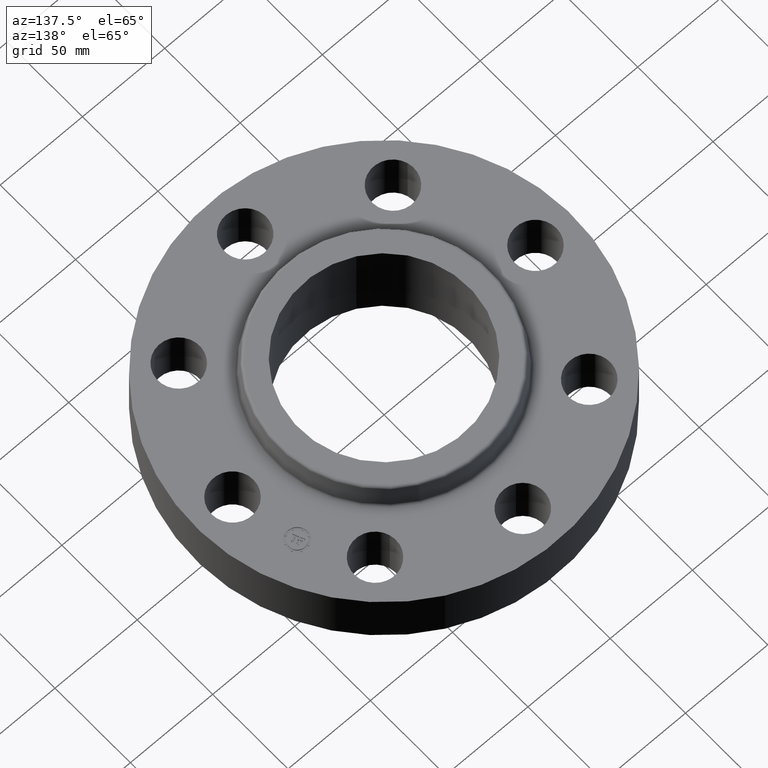
[diagram: clean part render]
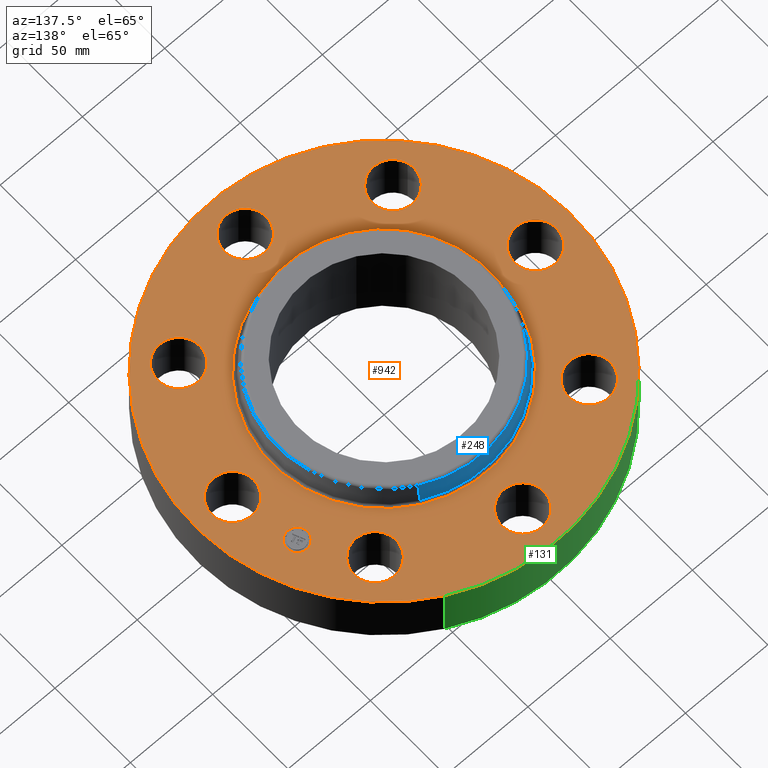
[diagram: same view with three faces highlighted in distinct colors, each labeled with its STEP entity id]
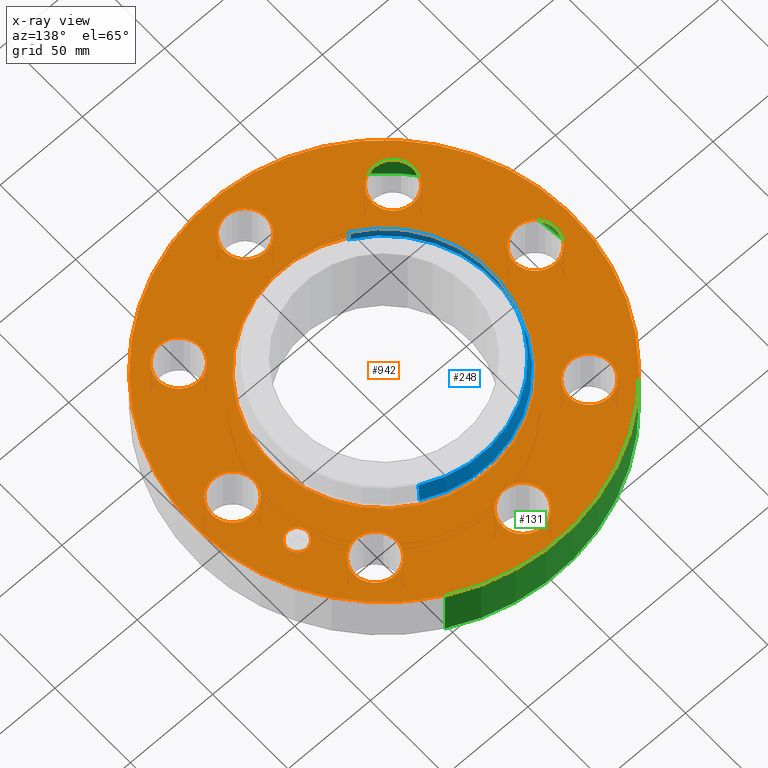
[diagram: x-ray of the same camera — body ghosted, the three highlighted faces saturated]
A machine part, auxiliary view with three faces highlighted in distinct colors.
The next image is the same camera in x-ray (body ghosted, the three faces saturated) — at least one of them is partly hidden behind the body in this view.
Their STEP definitions:

[orange] entity #942 — the highlighted planar face has unit normal (0, 0, -1).
#65=AXIS2_PLACEMENT_3D('Circle Axis2P3D',#63,#64,$) ;
#82=AXIS2_PLACEMENT_3D('Circle Axis2P3D',#80,#81,$) ;
#115=AXIS2_PLACEMENT_3D('Circle Axis2P3D',#113,#114,$) ;
#139=AXIS2_PLACEMENT_3D('Circle Axis2P3D',#137,#138,$) ;
#156=AXIS2_PLACEMENT_3D('Circle Axis2P3D',#154,#155,$) ;
#191=AXIS2_PLACEMENT_3D('Circle Axis2P3D',#189,#190,$) ;
#599=AXIS2_PLACEMENT_3D('Circle Axis2P3D',#597,#598,$) ;
#611=AXIS2_PLACEMENT_3D('Circle Axis2P3D',#609,#610,$) ;
#642=AXIS2_PLACEMENT_3D('Circle Axis2P3D',#640,#641,$) ;
#654=AXIS2_PLACEMENT_3D('Circle Axis2P3D',#652,#653,$) ;
#685=AXIS2_PLACEMENT_3D('Circle Axis2P3D',#683,#684,$) ;
#697=AXIS2_PLACEMENT_3D('Circle Axis2P3D',#695,#696,$) ;
#728=AXIS2_PLACEMENT_3D('Circle Axis2P3D',#726,#727,$) ;
#740=AXIS2_PLACEMENT_3D('Circle Axis2P3D',#738,#739,$) ;
#771=AXIS2_PLACEMENT_3D('Circle Axis2P3D',#769,#770,$) ;
#783=AXIS2_PLACEMENT_3D('Circle Axis2P3D',#781,#782,$) ;
#814=AXIS2_PLACEMENT_3D('Circle Axis2P3D',#812,#813,$) ;
#826=AXIS2_PLACEMENT_3D('Circle Axis2P3D',#824,#825,$) ;
#857=AXIS2_PLACEMENT_3D('Circle Axis2P3D',#855,#856,$) ;
#869=AXIS2_PLACEMENT_3D('Circle Axis2P3D',#867,#868,$) ;
#882=AXIS2_PLACEMENT_3D('Plane Axis2P3D',#879,#880,#881) ;
#926=AXIS2_PLACEMENT_3D('Circle Axis2P3D',#924,#925,$) ;
#935=AXIS2_PLACEMENT_3D('Circle Axis2P3D',#933,#934,$) ;
#46=CARTESIAN_POINT('Vertex',(3.18620871907,0.239712769303,1.38000000001)) ;
#60=CARTESIAN_POINT('Vertex',(4.06379128096,-0.239712769303,1.38000000001)) ;
#63=CARTESIAN_POINT('Axis2P3D Location',(3.62500000001,0.,1.38000000001)) ;
#80=CARTESIAN_POINT('Axis2P3D Location',(3.62500000001,0.,1.38000000001)) ;
#110=CARTESIAN_POINT('Vertex',(-2.15741492373,-3.94912152852,1.38000000001)) ;
#113=CARTESIAN_POINT('Axis2P3D Location',(0.,0.,1.38000000001)) ;
#117=CARTESIAN_POINT('Vertex',(2.15741492373,3.94912152852,1.38000000001)) ;
#137=CARTESIAN_POINT('Axis2P3D Location',(0.,0.,1.38000000001)) ;
#154=CARTESIAN_POINT('Axis2P3D Location',(0.,0.,1.38000000001)) ;
#158=CARTESIAN_POINT('Vertex',(1.2826291864,2.34783697721,1.38000000001)) ;
#160=CARTESIAN_POINT('Vertex',(-1.2826291864,-2.34783697721,1.38000000001)) ;
#189=CARTESIAN_POINT('Axis2P3D Location',(0.,0.,1.38000000001)) ;
#587=CARTESIAN_POINT('Vertex',(-2.42249231624,2.08348726682,1.38000000001)) ;
#594=CARTESIAN_POINT('Vertex',(-2.70403184738,3.04303689681,1.38000000001)) ;
#597=CARTESIAN_POINT('Axis2P3D Location',(-2.56326208181,2.56326208181,1.38000000001)) ;
#609=CARTESIAN_POINT('Axis2P3D Location',(-2.56326208181,2.56326208181,1.38000000001)) ;
#630=CARTESIAN_POINT('Vertex',(0.239712769303,-3.18620871907,1.38000000001)) ;
#637=CARTESIAN_POINT('Vertex',(-0.239712769303,-4.06379128096,1.38000000001)) ;
#640=CARTESIAN_POINT('Axis2P3D Location',(-3.37515236756E-016,-3.62500000001,1.38000000001)) ;
#652=CARTESIAN_POINT('Axis2P3D Location',(-3.37515236756E-016,-3.62500000001,1.38000000001)) ;
#673=CARTESIAN_POINT('Vertex',(-0.239712769303,3.18620871907,1.38000000001)) ;
#680=CARTESIAN_POINT('Vertex',(0.239712769303,4.06379128096,1.38000000001)) ;
#683=CARTESIAN_POINT('Axis2P3D Location',(-6.65901697039E-016,3.62500000001,1.38000000001)) ;
#695=CARTESIAN_POINT('Axis2P3D Location',(-6.65901697039E-016,3.62500000001,1.38000000001)) ;
#716=CARTESIAN_POINT('Vertex',(-2.08348726682,-2.42249231624,1.38000000001)) ;
#723=CARTESIAN_POINT('Vertex',(-3.04303689681,-2.70403184738,1.38000000001)) ;
#726=CARTESIAN_POINT('Axis2P3D Location',(-2.56326208181,-2.56326208181,1.38000000001)) ;
#738=CARTESIAN_POINT('Axis2P3D Location',(-2.56326208181,-2.56326208181,1.38000000001)) ;
#759=CARTESIAN_POINT('Vertex',(2.08348726682,2.42249231624,1.38000000001)) ;
#766=CARTESIAN_POINT('Vertex',(3.04303689681,2.70403184738,1.38000000001)) ;
#769=CARTESIAN_POINT('Axis2P3D Location',(2.56326208181,2.56326208181,1.38000000001)) ;
#781=CARTESIAN_POINT('Axis2P3D Location',(2.56326208181,2.56326208181,1.38000000001)) ;
#802=CARTESIAN_POINT('Vertex',(-3.18620871907,-0.239712769303,1.38000000001)) ;
#809=CARTESIAN_POINT('Vertex',(-4.06379128096,0.239712769303,1.38000000001)) ;
#812=CARTESIAN_POINT('Axis2P3D Location',(-3.62500000001,-4.43934464693E-016,1.38000000001)) ;
#824=CARTESIAN_POINT('Axis2P3D Location',(-3.62500000001,-4.43934464693E-016,1.38000000001)) ;
#845=CARTESIAN_POINT('Vertex',(2.42249231624,-2.08348726682,1.38000000001)) ;
#852=CARTESIAN_POINT('Vertex',(2.70403184738,-3.04303689681,1.38000000001)) ;
#855=CARTESIAN_POINT('Axis2P3D Location',(2.56326208181,-2.56326208181,1.38000000001)) ;
#867=CARTESIAN_POINT('Axis2P3D Location',(2.56326208181,-2.56326208181,1.38000000001)) ;
#879=CARTESIAN_POINT('Axis2P3D Location',(0.,4.50000000002,1.38000000001)) ;
#924=CARTESIAN_POINT('Axis2P3D Location',(3.34906330537,1.38722744233,1.38000000001)) ;
#928=CARTESIAN_POINT('Vertex',(3.25434915586,1.61588762663,1.38000000001)) ;
#930=CARTESIAN_POINT('Vertex',(3.44377745488,1.15856725803,1.38000000001)) ;
#933=CARTESIAN_POINT('Axis2P3D Location',(3.34906330537,1.38722744233,1.38000000001)) ;
#64=DIRECTION('Axis2P3D Direction',(0.,-0.,-0.0393700787402)) ;
#81=DIRECTION('Axis2P3D Direction',(0.,-0.,-0.0393700787402)) ;
#114=DIRECTION('Axis2P3D Direction',(0.,0.,-0.0393700787402)) ;
#138=DIRECTION('Axis2P3D Direction',(0.,0.,-0.0393700787402)) ;
#155=DIRECTION('Axis2P3D Direction',(0.,0.,-0.0393700787402)) ;
#190=DIRECTION('Axis2P3D Direction',(0.,0.,-0.0393700787402)) ;
#598=DIRECTION('Axis2P3D Direction',(0.,0.,-0.0393700787402)) ;
#610=DIRECTION('Axis2P3D Direction',(0.,0.,-0.0393700787402)) ;
#641=DIRECTION('Axis2P3D Direction',(0.,-0.,-0.0393700787402)) ;
#653=DIRECTION('Axis2P3D Direction',(0.,-0.,-0.0393700787402)) ;
#684=DIRECTION('Axis2P3D Direction',(0.,0.,-0.0393700787402)) ;
#696=DIRECTION('Axis2P3D Direction',(0.,0.,-0.0393700787402)) ;
#727=DIRECTION('Axis2P3D Direction',(-0.,0.,-0.0393700787402)) ;
#739=DIRECTION('Axis2P3D Direction',(-0.,0.,-0.0393700787402)) ;
#770=DIRECTION('Axis2P3D Direction',(0.,0.,-0.0393700787402)) ;
#782=DIRECTION('Axis2P3D Direction',(0.,0.,-0.0393700787402)) ;
#813=DIRECTION('Axis2P3D Direction',(-0.,0.,-0.0393700787402)) ;
#825=DIRECTION('Axis2P3D Direction',(-0.,0.,-0.0393700787402)) ;
#856=DIRECTION('Axis2P3D Direction',(0.,-0.,-0.0393700787402)) ;
#868=DIRECTION('Axis2P3D Direction',(0.,-0.,-0.0393700787402)) ;
#880=DIRECTION('Axis2P3D Direction',(0.,0.,-0.0393700787402)) ;
#881=DIRECTION('Axis2P3D XDirection',(0.0393700787402,0.,0.)) ;
#925=DIRECTION('Axis2P3D Direction',(0.,0.,-0.0393700787402)) ;
#934=DIRECTION('Axis2P3D Direction',(0.,0.,-0.0393700787402)) ;
#885=ORIENTED_EDGE('',*,*,#141,.F.) ;
#886=ORIENTED_EDGE('',*,*,#119,.F.) ;
#889=ORIENTED_EDGE('',*,*,#67,.T.) ;
#890=ORIENTED_EDGE('',*,*,#84,.T.) ;
#893=ORIENTED_EDGE('',*,*,#193,.T.) ;
#894=ORIENTED_EDGE('',*,*,#162,.T.) ;
#897=ORIENTED_EDGE('',*,*,#871,.T.) ;
#898=ORIENTED_EDGE('',*,*,#859,.T.) ;
#901=ORIENTED_EDGE('',*,*,#656,.T.) ;
#902=ORIENTED_EDGE('',*,*,#644,.T.) ;
#905=ORIENTED_EDGE('',*,*,#742,.T.) ;
#906=ORIENTED_EDGE('',*,*,#730,.T.) ;
#909=ORIENTED_EDGE('',*,*,#828,.T.) ;
#910=ORIENTED_EDGE('',*,*,#816,.T.) ;
#913=ORIENTED_EDGE('',*,*,#613,.T.) ;
#914=ORIENTED_EDGE('',*,*,#601,.T.) ;
#917=ORIENTED_EDGE('',*,*,#699,.T.) ;
#918=ORIENTED_EDGE('',*,*,#687,.T.) ;
#921=ORIENTED_EDGE('',*,*,#785,.T.) ;
#922=ORIENTED_EDGE('',*,*,#773,.T.) ;
#939=ORIENTED_EDGE('',*,*,#932,.T.) ;
#940=ORIENTED_EDGE('',*,*,#937,.T.) ;
#891=FACE_BOUND('',#888,.T.) ;
#895=FACE_BOUND('',#892,.T.) ;
#899=FACE_BOUND('',#896,.T.) ;
#903=FACE_BOUND('',#900,.T.) ;
#907=FACE_BOUND('',#904,.T.) ;
#911=FACE_BOUND('',#908,.T.) ;
#915=FACE_BOUND('',#912,.T.) ;
#919=FACE_BOUND('',#916,.T.) ;
#923=FACE_BOUND('',#920,.T.) ;
#941=FACE_BOUND('',#938,.T.) ;
#942=ADVANCED_FACE('PartBody',(#887,#891,#895,#899,#903,#907,#911,#915,#919,#923,#941),#883,.F.) ;
#66=CIRCLE('generated circle',#65,0.500000000002) ;
#83=CIRCLE('generated circle',#82,0.500000000002) ;
#116=CIRCLE('generated circle',#115,4.50000000002) ;
#140=CIRCLE('generated circle',#139,4.50000000002) ;
#157=CIRCLE('generated circle',#156,2.67534597788) ;
#192=CIRCLE('generated circle',#191,2.67534597788) ;
#600=CIRCLE('generated circle',#599,0.500000000002) ;
#612=CIRCLE('generated circle',#611,0.500000000002) ;
#643=CIRCLE('generated circle',#642,0.500000000002) ;
#655=CIRCLE('generated circle',#654,0.500000000002) ;
#686=CIRCLE('generated circle',#685,0.500000000002) ;
#698=CIRCLE('generated circle',#697,0.500000000002) ;
#729=CIRCLE('generated circle',#728,0.500000000002) ;
#741=CIRCLE('generated circle',#740,0.500000000002) ;
#772=CIRCLE('generated circle',#771,0.500000000002) ;
#784=CIRCLE('generated circle',#783,0.500000000002) ;
#815=CIRCLE('generated circle',#814,0.500000000002) ;
#827=CIRCLE('generated circle',#826,0.500000000002) ;
#858=CIRCLE('generated circle',#857,0.500000000002) ;
#870=CIRCLE('generated circle',#869,0.500000000002) ;
#927=CIRCLE('generated circle',#926,0.247500000001) ;
#936=CIRCLE('generated circle',#935,0.247500000001) ;
#67=EDGE_CURVE('',#47,#61,#66,.T.) ;
#84=EDGE_CURVE('',#61,#47,#83,.T.) ;
#119=EDGE_CURVE('',#111,#118,#116,.T.) ;
#141=EDGE_CURVE('',#118,#111,#140,.T.) ;
#162=EDGE_CURVE('',#159,#161,#157,.T.) ;
#193=EDGE_CURVE('',#161,#159,#192,.T.) ;
#601=EDGE_CURVE('',#588,#595,#600,.T.) ;
#613=EDGE_CURVE('',#595,#588,#612,.T.) ;
#644=EDGE_CURVE('',#631,#638,#643,.T.) ;
#656=EDGE_CURVE('',#638,#631,#655,.T.) ;
#687=EDGE_CURVE('',#674,#681,#686,.T.) ;
#699=EDGE_CURVE('',#681,#674,#698,.T.) ;
#730=EDGE_CURVE('',#717,#724,#729,.T.) ;
#742=EDGE_CURVE('',#724,#717,#741,.T.) ;
#773=EDGE_CURVE('',#760,#767,#772,.T.) ;
#785=EDGE_CURVE('',#767,#760,#784,.T.) ;
#816=EDGE_CURVE('',#803,#810,#815,.T.) ;
#828=EDGE_CURVE('',#810,#803,#827,.T.) ;
#859=EDGE_CURVE('',#846,#853,#858,.T.) ;
#871=EDGE_CURVE('',#853,#846,#870,.T.) ;
#932=EDGE_CURVE('',#929,#931,#927,.T.) ;
#937=EDGE_CURVE('',#931,#929,#936,.T.) ;
#884=EDGE_LOOP('',(#885,#886)) ;
#888=EDGE_LOOP('',(#889,#890)) ;
#892=EDGE_LOOP('',(#893,#894)) ;
#896=EDGE_LOOP('',(#897,#898)) ;
#900=EDGE_LOOP('',(#901,#902)) ;
#904=EDGE_LOOP('',(#905,#906)) ;
#908=EDGE_LOOP('',(#909,#910)) ;
#912=EDGE_LOOP('',(#913,#914)) ;
#916=EDGE_LOOP('',(#917,#918)) ;
#920=EDGE_LOOP('',(#921,#922)) ;
#938=EDGE_LOOP('',(#939,#940)) ;
#887=FACE_OUTER_BOUND('',#884,.T.) ;
#883=PLANE('',#882) ;
#47=VERTEX_POINT('',#46) ;
#61=VERTEX_POINT('',#60) ;
#111=VERTEX_POINT('',#110) ;
#118=VERTEX_POINT('',#117) ;
#159=VERTEX_POINT('',#158) ;
#161=VERTEX_POINT('',#160) ;
#588=VERTEX_POINT('',#587) ;
#595=VERTEX_POINT('',#594) ;
#631=VERTEX_POINT('',#630) ;
#638=VERTEX_POINT('',#637) ;
#674=VERTEX_POINT('',#673) ;
#681=VERTEX_POINT('',#680) ;
#717=VERTEX_POINT('',#716) ;
#724=VERTEX_POINT('',#723) ;
#760=VERTEX_POINT('',#759) ;
#767=VERTEX_POINT('',#766) ;
#803=VERTEX_POINT('',#802) ;
#810=VERTEX_POINT('',#809) ;
#846=VERTEX_POINT('',#845) ;
#853=VERTEX_POINT('',#852) ;
#929=VERTEX_POINT('',#928) ;
#931=VERTEX_POINT('',#930) ;

[blue] entity #248 — the highlighted conical surface has half-angle 10 deg.
#196=AXIS2_PLACEMENT_3D('Circle Axis2P3D',#194,#195,$) ;
#209=AXIS2_PLACEMENT_3D('Cone Axis2P3D',#206,#207,#208) ;
#239=AXIS2_PLACEMENT_3D('Circle Axis2P3D',#237,#238,$) ;
#167=CARTESIAN_POINT('Vertex',(1.25430066715,2.29598197056,1.42958110935)) ;
#174=CARTESIAN_POINT('Vertex',(-1.25430066715,-2.29598197056,1.42958110935)) ;
#194=CARTESIAN_POINT('Axis2P3D Location',(0.,0.,1.42958110935)) ;
#206=CARTESIAN_POINT('Axis2P3D Location',(0.,0.,1.89041889067)) ;
#211=CARTESIAN_POINT('Line Origine',(1.23482205469,2.2603266096,1.66000000001)) ;
#215=CARTESIAN_POINT('Vertex',(1.21534344222,2.22467124864,1.89041889067)) ;
#222=CARTESIAN_POINT('Vertex',(-1.21534344222,-2.22467124864,1.89041889067)) ;
#225=CARTESIAN_POINT('Line Origine',(-1.23482205469,-2.2603266096,1.66000000001)) ;
#237=CARTESIAN_POINT('Axis2P3D Location',(0.,0.,1.89041889067)) ;
#195=DIRECTION('Axis2P3D Direction',(0.,0.,-0.0393700787402)) ;
#207=DIRECTION('Axis2P3D Direction',(0.,0.,-0.0393700787402)) ;
#208=DIRECTION('Axis2P3D XDirection',(-0.0188750212049,-0.0345504945626,0.)) ;
#212=DIRECTION('Vector Direction',(0.00327761303565,0.00599963041829,-0.03877195878)) ;
#226=DIRECTION('Vector Direction',(-0.00327761303565,-0.00599963041829,-0.03877195878)) ;
#238=DIRECTION('Axis2P3D Direction',(0.,0.,-0.0393700787402)) ;
#213=VECTOR('Line Direction',#212,0.0393700787402) ;
#227=VECTOR('Line Direction',#226,0.0393700787402) ;
#243=ORIENTED_EDGE('',*,*,#198,.F.) ;
#244=ORIENTED_EDGE('',*,*,#229,.T.) ;
#245=ORIENTED_EDGE('',*,*,#241,.T.) ;
#246=ORIENTED_EDGE('',*,*,#217,.F.) ;
#248=ADVANCED_FACE('PartBody',(#247),#210,.T.) ;
#197=CIRCLE('generated circle',#196,2.6162575127) ;
#240=CIRCLE('generated circle',#239,2.53499937812) ;
#210=CONICAL_SURFACE('Cone',#209,2.53499937812,0.174532925199) ;
#198=EDGE_CURVE('',#175,#168,#197,.T.) ;
#217=EDGE_CURVE('',#168,#216,#214,.F.) ;
#229=EDGE_CURVE('',#175,#223,#228,.F.) ;
#241=EDGE_CURVE('',#223,#216,#240,.T.) ;
#242=EDGE_LOOP('',(#243,#244,#245,#246)) ;
#247=FACE_OUTER_BOUND('',#242,.T.) ;
#214=LINE('Line',#211,#213) ;
#228=LINE('Line',#225,#227) ;
#168=VERTEX_POINT('',#167) ;
#175=VERTEX_POINT('',#174) ;
#216=VERTEX_POINT('',#215) ;
#223=VERTEX_POINT('',#222) ;

[green] entity #131 — the highlighted cylindrical surface (partial cylindrical patch) has radius 114.3 mm, axis along (0, 0, -1).
#95=AXIS2_PLACEMENT_3D('Cylinder Axis2P3D',#92,#93,#94) ;
#99=AXIS2_PLACEMENT_3D('Circle Axis2P3D',#97,#98,$) ;
#115=AXIS2_PLACEMENT_3D('Circle Axis2P3D',#113,#114,$) ;
#92=CARTESIAN_POINT('Axis2P3D Location',(0.,0.,0.845000000003)) ;
#97=CARTESIAN_POINT('Axis2P3D Location',(0.,0.,5.59482469102E-016)) ;
#101=CARTESIAN_POINT('Vertex',(-2.15741492373,-3.94912152852,5.59482469102E-016)) ;
#103=CARTESIAN_POINT('Vertex',(2.15741492373,3.94912152852,5.59482469102E-016)) ;
#106=CARTESIAN_POINT('Line Origine',(-2.15741492373,-3.94912152852,0.690000000003)) ;
#110=CARTESIAN_POINT('Vertex',(-2.15741492373,-3.94912152852,1.38000000001)) ;
#113=CARTESIAN_POINT('Axis2P3D Location',(0.,0.,1.38000000001)) ;
#117=CARTESIAN_POINT('Vertex',(2.15741492373,3.94912152852,1.38000000001)) ;
#120=CARTESIAN_POINT('Line Origine',(2.15741492373,3.94912152852,0.690000000003)) ;
#93=DIRECTION('Axis2P3D Direction',(0.,0.,-0.0393700787402)) ;
#94=DIRECTION('Axis2P3D XDirection',(0.0188750212049,0.0345504945626,0.)) ;
#98=DIRECTION('Axis2P3D Direction',(0.,0.,-0.0393700787402)) ;
#107=DIRECTION('Vector Direction',(0.,0.,-0.0393700787402)) ;
#114=DIRECTION('Axis2P3D Direction',(0.,0.,-0.0393700787402)) ;
#121=DIRECTION('Vector Direction',(0.,0.,-0.0393700787402)) ;
#108=VECTOR('Line Direction',#107,0.0393700787402) ;
#122=VECTOR('Line Direction',#121,0.0393700787402) ;
#126=ORIENTED_EDGE('',*,*,#105,.F.) ;
#127=ORIENTED_EDGE('',*,*,#112,.T.) ;
#128=ORIENTED_EDGE('',*,*,#119,.T.) ;
#129=ORIENTED_EDGE('',*,*,#124,.F.) ;
#131=ADVANCED_FACE('PartBody',(#130),#96,.T.) ;
#100=CIRCLE('generated circle',#99,4.50000000002) ;
#116=CIRCLE('generated circle',#115,4.50000000002) ;
#96=CYLINDRICAL_SURFACE('generated cylinder',#95,4.50000000002) ;
#105=EDGE_CURVE('',#102,#104,#100,.T.) ;
#112=EDGE_CURVE('',#102,#111,#109,.F.) ;
#119=EDGE_CURVE('',#111,#118,#116,.T.) ;
#124=EDGE_CURVE('',#104,#118,#123,.F.) ;
#125=EDGE_LOOP('',(#126,#127,#128,#129)) ;
#130=FACE_OUTER_BOUND('',#125,.T.) ;
#109=LINE('Line',#106,#108) ;
#123=LINE('Line',#120,#122) ;
#102=VERTEX_POINT('',#101) ;
#104=VERTEX_POINT('',#103) ;
#111=VERTEX_POINT('',#110) ;
#118=VERTEX_POINT('',#117) ;